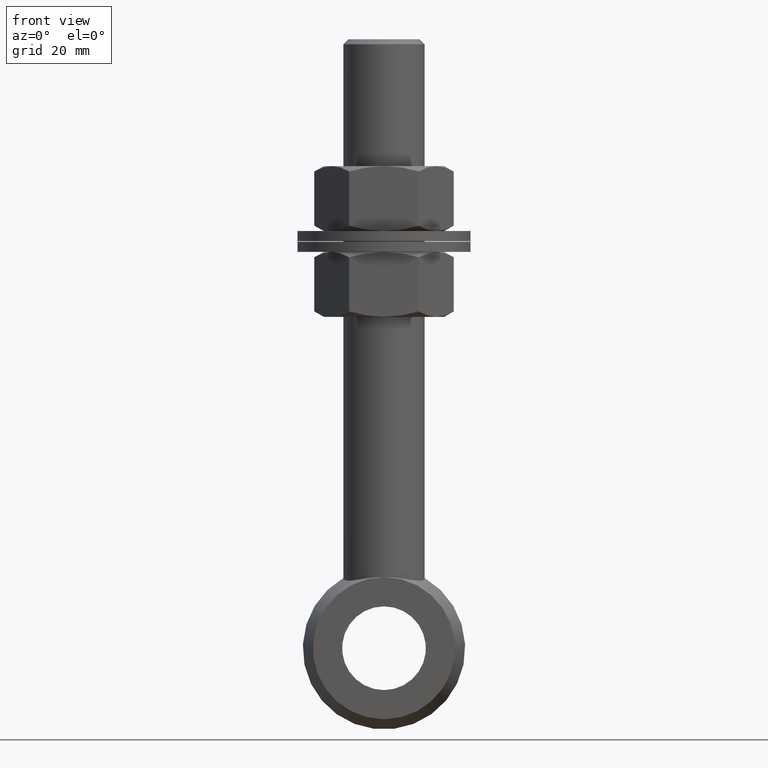
[diagram: clean part render]
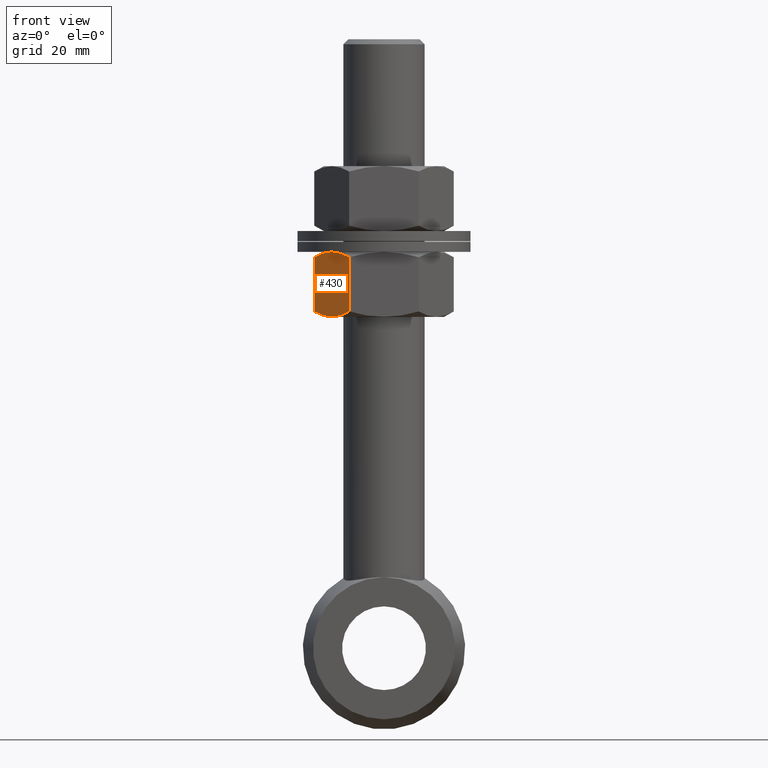
[diagram: same view with one face highlighted and labeled with its STEP entity id]
A machine part, front view. The second image highlights one B-rep face of the part: STEP entity #430.
In plain terms, the highlighted planar face has unit normal (0.866, 0.5, 0).
Its self-contained STEP definition (entity closure, byte-faithful):
#36 = VERTEX_POINT ( 'NONE', #2702 ) ;
#72 = VERTEX_POINT ( 'NONE', #5964 ) ;
#98 = CARTESIAN_POINT ( 'NONE',  ( -10.89096439621675927, 4.936296322328522557, 6.400000000000094502 ) ) ;
#124 = ORIENTED_EDGE ( 'NONE', *, *, #5097, .T. ) ;
#257 = CARTESIAN_POINT ( 'NONE',  ( -11.46939202279295245, 3.934430284597089766, -6.277657943248062367 ) ) ;
#373 = CARTESIAN_POINT ( 'NONE',  ( -6.870468203356452364, 11.89999999999980318, -5.337134870022873123 ) ) ;
#418 = CARTESIAN_POINT ( 'NONE',  ( -8.854296110466695069, 8.463909271411838020, 6.205653652303623424 ) ) ;
#430 = ADVANCED_FACE ( 'NONE', ( #2218 ), #4978, .F. ) ;
#462 = VERTEX_POINT ( 'NONE', #1607 ) ;
#522 = B_SPLINE_CURVE_WITH_KNOTS ( 'NONE', 3,
 ( #4969, #4487, #2612, #257, #3522, #5472, #1599, #3558 ),
 .UNSPECIFIED., .F., .F.,
 ( 4, 2, 2, 4 ),
 ( 0.006952026648765045197, 0.008683475307169660762, 0.01041492396557427806, 0.01387782128238351093 ),
 .UNSPECIFIED. ) ;
#618 = CARTESIAN_POINT ( 'NONE',  ( -10.30570230503461993, 5.949999999999902478, 6.399999999999988809 ) ) ;
#663 = CARTESIAN_POINT ( 'NONE',  ( -7.432427428936739133, 10.92665806951268870, -5.661582180185722457 ) ) ;
#805 = LINE ( 'NONE', #2939, #5689 ) ;
#820 = AXIS2_PLACEMENT_3D ( 'NONE', #5463, #2619, #5378 ) ;
#873 = CARTESIAN_POINT ( 'NONE',  ( -9.142012587276379776, 7.965569715402740947, 6.277657943248343919 ) ) ;
#918 = ORIENTED_EDGE ( 'NONE', *, *, #1922, .T. ) ;
#919 = CARTESIAN_POINT ( 'NONE',  ( -13.74093640671290117, 1.624638731698777190E-15, 5.337134870023213296 ) ) ;
#1168 = CARTESIAN_POINT ( 'NONE',  ( -10.30570230503461993, 5.949999999999902478, -6.399999999999648637 ) ) ;
#1196 = B_SPLINE_CURVE_WITH_KNOTS ( 'NONE', 3,
 ( #2735, #1310, #4156, #873, #418, #3697, #3174, #1266 ),
 .UNSPECIFIED., .F., .F.,
 ( 4, 2, 2, 4 ),
 ( 0.006952026648765101575, 0.008683475307169700660, 0.01041492396557430061, 0.01387782128238350225 ),
 .UNSPECIFIED. ) ;
#1266 = CARTESIAN_POINT ( 'NONE',  ( -6.870468203356452364, 11.89999999999980318, 5.337134870023213296 ) ) ;
#1310 = CARTESIAN_POINT ( 'NONE',  ( -10.01416545763389898, 6.454956631976498826, 6.400000000000095390 ) ) ;
#1435 = EDGE_LOOP ( 'NONE', ( #3060, #124, #3488, #918, #5744, #5127 ) ) ;
#1599 = CARTESIAN_POINT ( 'NONE',  ( -13.18038051927178600, 0.9709112775298688325, -5.660771962533144297 ) ) ;
#1607 = CARTESIAN_POINT ( 'NONE',  ( -10.30570230503461993, 5.949999999999902478, 6.399999999999988809 ) ) ;
#1726 = EDGE_CURVE ( 'NONE', #462, #72, #1196, .T. ) ;
#1814 = VERTEX_POINT ( 'NONE', #373 ) ;
#1844 = EDGE_CURVE ( 'NONE', #36, #2768, #805, .T. ) ;
#1877 = CARTESIAN_POINT ( 'NONE',  ( -13.17897718113260197, 0.9733419304871341327, 5.661582180185997792 ) ) ;
#1922 = EDGE_CURVE ( 'NONE', #72, #1814, #3603, .T. ) ;
#2008 = EDGE_CURVE ( 'NONE', #1814, #6100, #4556, .T. ) ;
#2056 = DIRECTION ( 'NONE',  ( -3.900098264966522650E-47, -5.460137570953213873E-46, -1.000000000000000000 ) ) ;
#2079 = VECTOR ( 'NONE', #2056, 1000.000000000000000 ) ;
#2218 = FACE_OUTER_BOUND ( 'NONE', #1435, .T. ) ;
#2434 = CARTESIAN_POINT ( 'NONE',  ( -13.74093640671290117, 1.509076070273271453E-15, -5.337134870022873123 ) ) ;
#2612 = CARTESIAN_POINT ( 'NONE',  ( -10.89008397097355818, 4.937821263582023334, -6.374877856603246684 ) ) ;
#2619 = DIRECTION ( 'NONE',  ( 0.8660254037844382635, -0.5000000000000008882, -2.346901236637787435E-46 ) ) ;
#2702 = CARTESIAN_POINT ( 'NONE',  ( -13.74093640671290117, 1.624638731698777190E-15, 5.337134870023213296 ) ) ;
#2735 = CARTESIAN_POINT ( 'NONE',  ( -10.30570230503461993, 5.949999999999902478, 6.399999999999988809 ) ) ;
#2768 = VERTEX_POINT ( 'NONE', #2434 ) ;
#2834 = CARTESIAN_POINT ( 'NONE',  ( -10.30570230503461993, 5.949999999999902478, -6.399999999999648637 ) ) ;
#2939 = CARTESIAN_POINT ( 'NONE',  ( -13.74093640671290117, 1.643010684887739890E-15, 6.399999999999988809 ) ) ;
#3060 = ORIENTED_EDGE ( 'NONE', *, *, #1844, .F. ) ;
#3174 = CARTESIAN_POINT ( 'NONE',  ( -7.431024090797567538, 10.92908872246994179, 5.660771962533440060 ) ) ;
#3474 = CARTESIAN_POINT ( 'NONE',  ( -9.142453584376113440, 7.964805886020024595, -6.298703274484449111 ) ) ;
#3488 = ORIENTED_EDGE ( 'NONE', *, *, #1726, .T. ) ;
#3522 = CARTESIAN_POINT ( 'NONE',  ( -11.75710849960264071, 3.436090728587990473, -6.205653652303340095 ) ) ;
#3558 = CARTESIAN_POINT ( 'NONE',  ( -13.74093640671290117, 1.509076070273271453E-15, -5.337134870022873123 ) ) ;
#3603 = LINE ( 'NONE', #4409, #2079 ) ;
#3697 = CARTESIAN_POINT ( 'NONE',  ( -7.996256762627343306, 9.950077016762858051, 5.927940675850870811 ) ) ;
#3822 = EDGE_CURVE ( 'NONE', #6100, #2768, #522, .T. ) ;
#4156 = CARTESIAN_POINT ( 'NONE',  ( -9.721320639095775817, 6.962178736417821590, 6.374877856603529125 ) ) ;
#4409 = CARTESIAN_POINT ( 'NONE',  ( -6.870468203356452364, 11.89999999999980318, 6.399999999999988809 ) ) ;
#4487 = CARTESIAN_POINT ( 'NONE',  ( -10.59723915243542436, 5.445043368023354979, -6.399999999999812061 ) ) ;
#4556 = B_SPLINE_CURVE_WITH_KNOTS ( 'NONE', 3,
 ( #5350, #663, #5390, #3474, #4931, #1168 ),
 .UNSPECIFIED., .F., .F.,
 ( 4, 2, 4 ),
 ( 2.380729678850750000E-07, 0.003476132360866465449, 0.006952026648765045197 ),
 .UNSPECIFIED. ) ;
#4931 = CARTESIAN_POINT ( 'NONE',  ( -9.720440213852564071, 6.963703677671327696, -6.399999999999809397 ) ) ;
#4969 = CARTESIAN_POINT ( 'NONE',  ( -10.30570230503461993, 5.949999999999902478, -6.399999999999648637 ) ) ;
#4978 = PLANE ( 'NONE',  #820 ) ;
#5097 = EDGE_CURVE ( 'NONE', #36, #462, #5445, .T. ) ;
#5127 = ORIENTED_EDGE ( 'NONE', *, *, #3822, .T. ) ;
#5200 = CARTESIAN_POINT ( 'NONE',  ( -12.61291318730591549, 1.953793528130309598, 5.928878535649028336 ) ) ;
#5260 = DIRECTION ( 'NONE',  ( -3.900098264966522650E-47, -5.460137570953213873E-46, -1.000000000000000000 ) ) ;
#5350 = CARTESIAN_POINT ( 'NONE',  ( -6.870468203356452364, 11.89999999999980318, -5.337134870022873123 ) ) ;
#5378 = DIRECTION ( 'NONE',  ( 0.5000000000000007772, 0.8660254037844381525, 5.460137570953220096E-46 ) ) ;
#5390 = CARTESIAN_POINT ( 'NONE',  ( -7.998491422763422953, 9.946206471869519561, -5.928878535648748560 ) ) ;
#5445 = B_SPLINE_CURVE_WITH_KNOTS ( 'NONE', 3,
 ( #919, #1877, #5200, #5775, #98, #618 ),
 .UNSPECIFIED., .F., .F.,
 ( 4, 2, 4 ),
 ( 2.380729678845421633E-07, 0.003476132360866492771, 0.006952026648765101575 ),
 .UNSPECIFIED. ) ;
#5463 = CARTESIAN_POINT ( 'NONE',  ( -6.870468203356452364, 11.89999999999980318, 6.399999999999988809 ) ) ;
#5472 = CARTESIAN_POINT ( 'NONE',  ( -12.61514784744200313, 1.949922983236957119, -5.927940675850583041 ) ) ;
#5689 = VECTOR ( 'NONE', #5260, 1000.000000000000000 ) ;
#5744 = ORIENTED_EDGE ( 'NONE', *, *, #2008, .T. ) ;
#5775 = CARTESIAN_POINT ( 'NONE',  ( -11.46895102569321523, 3.935194113979820774, 6.298703274484733328 ) ) ;
#5964 = CARTESIAN_POINT ( 'NONE',  ( -6.870468203356452364, 11.89999999999980318, 5.337134870023213296 ) ) ;
#6100 = VERTEX_POINT ( 'NONE', #2834 ) ;